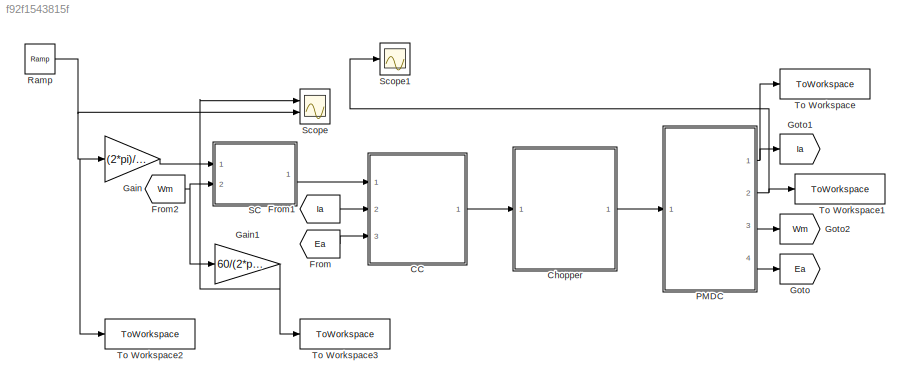
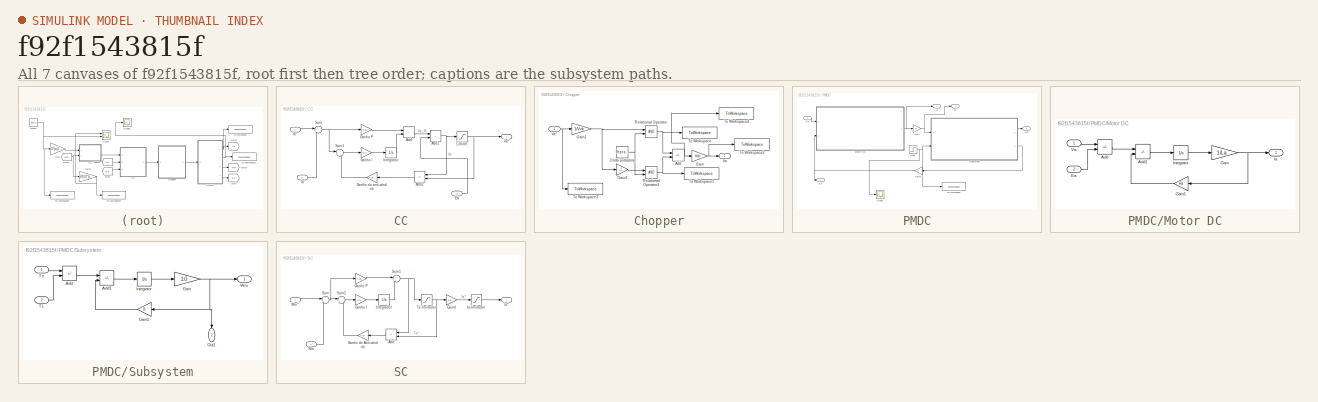
[diagram: thumbnail index - all 7 canvases of the model, root first then tree order]
MODEL slx_f92f1543815f
KIND model
CONFIG AbsTol = auto
CONFIG EnableMultiTasking = off
CONFIG FixedStep = 1e-8
CONFIG MaxStep = auto
CONFIG MinStep = auto
CONFIG RelTol = 1e-3
CONFIG SampleTimeConstraint = Unconstrained
CONFIG SolverName = ode4
CONFIG StartTime = 0
CONFIG StopTime = 0.2
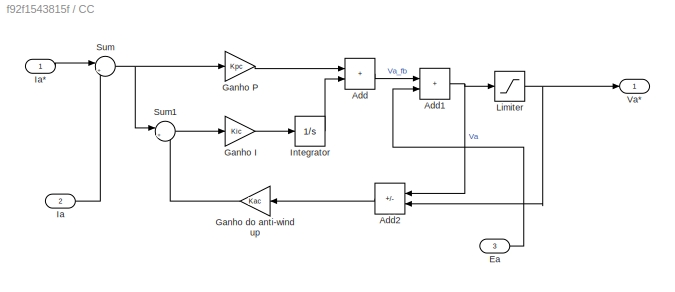
BLOCK [SubSystem] CC
  Ports = [3, 1]
  RequestExecContextInheritance = off
BLOCK [Sum] CC/Add
  IconShape = rectangular
  Ports = [2, 1]
BLOCK [Sum] CC/Add1
  IconShape = rectangular
  Ports = [2, 1]
BLOCK [Sum] CC/Add2
  IconShape = rectangular
  Inputs = +-
  NameLocation = top
  Ports = [2, 1]
BLOCK [Inport] CC/Ea
  Port = 3
BLOCK [Gain] CC/Ganho I
  Gain = Kic
BLOCK [Gain] CC/Ganho P
  Gain = Kpc
BLOCK [Gain] CC/Ganho do anti-wind up
  Gain = Kac
  NameLocation = top
BLOCK [Inport] CC/Ia
  Port = 2
BLOCK [Inport] CC/Ia*
BLOCK [Integrator] CC/Integrator
  Ports = [1, 1]
BLOCK [Saturate] CC/Limiter
  LowerLimit = -Va_rated
  UpperLimit = Va_rated
BLOCK [Sum] CC/Sum
  Inputs = |+-
  Ports = [2, 1]
BLOCK [Sum] CC/Sum1
  Inputs = |+-
  Ports = [2, 1]
BLOCK [Outport] CC/Va*
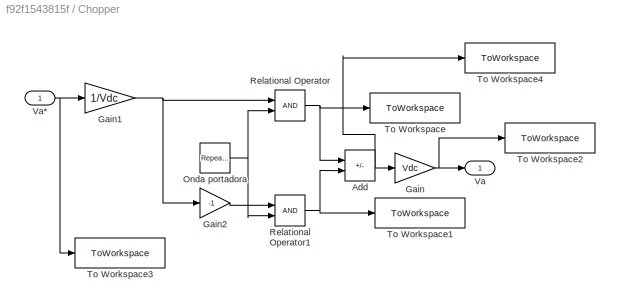
BLOCK [SubSystem] Chopper
  Ports = [1, 1]
  RequestExecContextInheritance = off
BLOCK [Sum] Chopper/Add
  IconShape = rectangular
  Inputs = +-
  Ports = [2, 1]
BLOCK [Gain] Chopper/Gain
  Gain = Vdc
BLOCK [Gain] Chopper/Gain1
  Gain = 1/Vdc
BLOCK [Gain] Chopper/Gain2
  Gain = -1
BLOCK [Reference] Chopper/Onda portadora  REF=simulink/Sources/Repeating
Sequence
  Ports = [0, 1]
  SourceBlock = simulink/Sources/Repeating\nSequence
  SourceProductBaseCode = SL
  SourceType = Repeating table
BLOCK [RelationalOperator] Chopper/Relational Operator
  InputSameDT = off
  OutDataTypeStr = boolean
  Ports = [2, 1]
  RndMeth = Simplest
BLOCK [RelationalOperator] Chopper/Relational Operator1
  InputSameDT = off
  OutDataTypeStr = boolean
  Ports = [2, 1]
  RndMeth = Simplest
BLOCK [ToWorkspace] Chopper/To Workspace
  FixptAsFi = on
  MaxDataPoints = inf
  Ports = [1]
  SampleTime = -1
  SaveFormat = Timeseries
  VariableName = Sa
BLOCK [ToWorkspace] Chopper/To Workspace1
  FixptAsFi = on
  MaxDataPoints = inf
  Ports = [1]
  SampleTime = -1
  SaveFormat = Timeseries
  VariableName = Sb
BLOCK [ToWorkspace] Chopper/To Workspace2
  FixptAsFi = on
  MaxDataPoints = inf
  Ports = [1]
  SampleTime = -1
  SaveFormat = Timeseries
  VariableName = Va
BLOCK [ToWorkspace] Chopper/To Workspace3
  FixptAsFi = on
  MaxDataPoints = inf
  Ports = [1]
  SampleTime = -1
  SaveFormat = Timeseries
  VariableName = Va_ref
BLOCK [ToWorkspace] Chopper/To Workspace4
  FixptAsFi = on
  MaxDataPoints = inf
  Ports = [1]
  SampleTime = -1
  SaveFormat = Timeseries
  VariableName = Sa_Sb
BLOCK [Outport] Chopper/Va
BLOCK [Inport] Chopper/Va*
BLOCK [From] From
  GotoTag = Ea
BLOCK [From] From1
  GotoTag = Ia
BLOCK [From] From2
  GotoTag = Wm
BLOCK [Gain] Gain
  Gain = (2*pi)/60
BLOCK [Gain] Gain1
  Gain = 60/(2*pi)
BLOCK [Goto] Goto
  GotoTag = Ea
BLOCK [Goto] Goto1
  GotoTag = Ia
BLOCK [Goto] Goto2
  GotoTag = Wm
BLOCK [SubSystem] PMDC
  Ports = [1, 4]
  RequestExecContextInheritance = off
BLOCK [Outport] PMDC/Ea
  Port = 4
BLOCK [Gain] PMDC/Gain
  Gain = Kt
BLOCK [Gain] PMDC/Gain2
  Gain = Kt
  NameLocation = top
BLOCK [Outport] PMDC/Ia
BLOCK [SubSystem] PMDC/Motor DC
  Ports = [2, 1]
  RequestExecContextInheritance = off
BLOCK [Sum] PMDC/Motor DC/Add
  IconShape = rectangular
  Inputs = +-
  Ports = [2, 1]
BLOCK [Sum] PMDC/Motor DC/Add1
  IconShape = rectangular
  Inputs = +-
  Ports = [2, 1]
BLOCK [Inport] PMDC/Motor DC/Ea
  Port = 2
BLOCK [Gain] PMDC/Motor DC/Gain
  Gain = 1/La
BLOCK [Gain] PMDC/Motor DC/Gain1
  Gain = Ra
  NameLocation = top
BLOCK [Outport] PMDC/Motor DC/Ia
BLOCK [Integrator] PMDC/Motor DC/Integrator
  Ports = [1, 1]
BLOCK [Inport] PMDC/Motor DC/Va
BLOCK [Scope] PMDC/Scope
  Floating = off
  NumInputPorts = 1
  Ports = [1]
  ScopeSpecificationString = Simulink.scopes.TimeScopeBlockCfg('CurrentConfiguration', extmgr.ConfigurationSet(extmgr.Configuration('Core','General UI',true),extmgr.Configuration('Core','Source UI',true),extmgr.Configuration('Sources','WiredSimulink',true,'DataLoggingVariableName','ScopeData1'),extmgr.Configuration('Visuals','Time Domain',true,'SerializedDisplays',{struct('MinYLimReal','-0.5','MaxYLimReal','4.5','YLabelReal',...<+1339ch>
BLOCK [Step] PMDC/Step
  After = 4
  SampleTime = 0
  Time = 0.01
BLOCK [SubSystem] PMDC/Subsystem
  Ports = [2, 2]
  RequestExecContextInheritance = off
BLOCK [Sum] PMDC/Subsystem/Add
  IconShape = rectangular
  Inputs = +-
  Ports = [2, 1]
BLOCK [Sum] PMDC/Subsystem/Add1
  IconShape = rectangular
  Inputs = +-
  Ports = [2, 1]
BLOCK [Gain] PMDC/Subsystem/Gain
  Gain = 1/J
BLOCK [Gain] PMDC/Subsystem/Gain1
  Gain = B
  NameLocation = top
BLOCK [Integrator] PMDC/Subsystem/Integrator
  Ports = [1, 1]
BLOCK [Outport] PMDC/Subsystem/Out1
  NameLocation = left
  Port = 2
BLOCK [Inport] PMDC/Subsystem/TL
  Port = 2
BLOCK [Inport] PMDC/Subsystem/Te
BLOCK [Outport] PMDC/Subsystem/Wm
BLOCK [Outport] PMDC/Te
  Port = 2
BLOCK [ToWorkspace] PMDC/To Workspace
  FixptAsFi = on
  MaxDataPoints = inf
  Ports = [1]
  SampleTime = -1
  SaveFormat = Timeseries
  VariableName = TL
BLOCK [Inport] PMDC/Va
BLOCK [Outport] PMDC/Wm
  Port = 3
BLOCK [Reference] Ramp  REF=simulink/Sources/Ramp
  Ports = [0, 1]
  SourceBlock = simulink/Sources/Ramp
  SourceProductBaseCode = SL
  SourceType = Ramp
BLOCK [SubSystem] SC
  Ports = [2, 1]
  RequestExecContextInheritance = off
BLOCK [Sum] SC/Add
  IconShape = rectangular
  Inputs = +-
  NameLocation = top
  Ports = [2, 1]
BLOCK [Gain] SC/Gain4
  Gain = 1/Kt
BLOCK [Gain] SC/Ganho I
  Gain = Kis
BLOCK [Gain] SC/Ganho P
  Gain = Kps
BLOCK [Gain] SC/Ganho de Anti-wind up
  Gain = Kas
  NameLocation = top
BLOCK [Outport] SC/Ia*
BLOCK [Saturate] SC/Ia-limitador
  LowerLimit = -Ia_rated
  UpperLimit = Ia_rated
BLOCK [Integrator] SC/Integrador
  Ports = [1, 1]
BLOCK [Sum] SC/Sum
  Inputs = |+-
  Ports = [2, 1]
BLOCK [Sum] SC/Sum1
  Inputs = |++
  Ports = [2, 1]
BLOCK [Sum] SC/Sum2
  Inputs = |+-
  Ports = [2, 1]
BLOCK [Saturate] SC/Te-limitador
  LowerLimit = -Te_rated
  UpperLimit = Te_rated
BLOCK [Inport] SC/Wm
  Port = 2
BLOCK [Inport] SC/Wm*
BLOCK [Scope] Scope
  Floating = off
  NumInputPorts = 2
  Ports = [2]
  ScopeSpecificationString = Simulink.scopes.TimeScopeBlockCfg('CurrentConfiguration', extmgr.ConfigurationSet(extmgr.Configuration('Core','General UI',true),extmgr.Configuration('Core','Source UI',true),extmgr.Configuration('Sources','WiredSimulink',true),extmgr.Configuration('Visuals','Time Domain',true,'SerializedDisplays',{struct('MinYLimReal','-973580.97332','MaxYLimReal','1778003.28349','YLabelReal','','MinYLimMag','   ...<+1403ch>
BLOCK [Scope] Scope1
  Floating = off
  NumInputPorts = 1
  Ports = [1]
  ScopeSpecificationString = Simulink.scopes.TimeScopeBlockCfg('CurrentConfiguration', extmgr.ConfigurationSet(extmgr.Configuration('Core','General UI',true),extmgr.Configuration('Core','Source UI',true),extmgr.Configuration('Sources','WiredSimulink',true,'DataLoggingVariableName','ScopeData1'),extmgr.Configuration('Visuals','Time Domain',true,'SerializedDisplays',{struct('MinYLimReal','-46340.31087','MaxYLimReal','46340.7116...<+1424ch>
BLOCK [ToWorkspace] To Workspace
  FixptAsFi = on
  MaxDataPoints = inf
  Ports = [1]
  SampleTime = -1
  SaveFormat = Timeseries
  VariableName = Ia
BLOCK [ToWorkspace] To Workspace1
  FixptAsFi = on
  MaxDataPoints = inf
  Ports = [1]
  SampleTime = -1
  SaveFormat = Timeseries
  VariableName = Te
BLOCK [ToWorkspace] To Workspace2
  FixptAsFi = on
  MaxDataPoints = inf
  Ports = [1]
  SampleTime = -1
  SaveFormat = Timeseries
  VariableName = W_rpm_ref
BLOCK [ToWorkspace] To Workspace3
  FixptAsFi = on
  MaxDataPoints = inf
  Ports = [1]
  SampleTime = -1
  SaveFormat = Timeseries
  VariableName = Wm_rpm
NET CC/Add1:1 -> CC/Add2:1, CC/Limiter:1
LINE CC/Add2:1 -> CC/Ganho do anti-wind up:1
LINE CC/Add:1 -> CC/Add1:1
LINE CC/Ea:1 -> CC/Add1:2
LINE CC/Ganho I:1 -> CC/Integrator:1
LINE CC/Ganho P:1 -> CC/Add:1
LINE CC/Ganho do anti-wind up:1 -> CC/Sum1:2
LINE CC/Ia*:1 -> CC/Sum:1
LINE CC/Ia:1 -> CC/Sum:2
LINE CC/Integrator:1 -> CC/Add:2
NET CC/Limiter:1 -> CC/Add2:2, CC/Va*:1
LINE CC/Sum1:1 -> CC/Ganho I:1
NET CC/Sum:1 -> CC/Ganho P:1, CC/Sum1:1
LINE CC:1 -> Chopper:1
NET Chopper/Add:1 -> Chopper/Gain:1, Chopper/To Workspace4:1
NET Chopper/Gain1:1 -> Chopper/Gain2:1, Chopper/Relational Operator:1
LINE Chopper/Gain2:1 -> Chopper/Relational Operator1:1
NET Chopper/Gain:1 -> Chopper/To Workspace2:1, Chopper/Va:1
NET Chopper/Onda portadora:1 -> Chopper/Relational Operator1:2, Chopper/Relational Operator:2
NET Chopper/Relational Operator1:1 -> Chopper/Add:2, Chopper/To Workspace1:1
NET Chopper/Relational Operator:1 -> Chopper/Add:1, Chopper/To Workspace:1
NET Chopper/Va*:1 -> Chopper/Gain1:1, Chopper/To Workspace3:1
LINE Chopper:1 -> PMDC:1
LINE From1:1 -> CC:2
NET From2:1 -> Gain1:1, SC:2
LINE From:1 -> CC:3
NET Gain1:1 -> Scope:1, To Workspace3:1
LINE Gain:1 -> SC:1
NET PMDC/Gain2:1 -> PMDC/Ea:1, PMDC/Motor DC:2
NET PMDC/Gain:1 -> PMDC/Subsystem:1, PMDC/Te:1
LINE PMDC/Motor DC/Add1:1 -> PMDC/Motor DC/Integrator:1
LINE PMDC/Motor DC/Add:1 -> PMDC/Motor DC/Add1:1
LINE PMDC/Motor DC/Ea:1 -> PMDC/Motor DC/Add:2
LINE PMDC/Motor DC/Gain1:1 -> PMDC/Motor DC/Add1:2
NET PMDC/Motor DC/Gain:1 -> PMDC/Motor DC/Gain1:1, PMDC/Motor DC/Ia:1
LINE PMDC/Motor DC/Integrator:1 -> PMDC/Motor DC/Gain:1
LINE PMDC/Motor DC/Va:1 -> PMDC/Motor DC/Add:1
NET PMDC/Motor DC:1 -> PMDC/Gain:1, PMDC/Ia:1
NET PMDC/Step:1 -> PMDC/Scope:1, PMDC/Subsystem:2, PMDC/To Workspace:1
LINE PMDC/Subsystem/Add1:1 -> PMDC/Subsystem/Integrator:1
LINE PMDC/Subsystem/Add:1 -> PMDC/Subsystem/Add1:1
LINE PMDC/Subsystem/Gain1:1 -> PMDC/Subsystem/Add1:2
NET PMDC/Subsystem/Gain:1 -> PMDC/Subsystem/Gain1:1, PMDC/Subsystem/Out1:1, PMDC/Subsystem/Wm:1
LINE PMDC/Subsystem/Integrator:1 -> PMDC/Subsystem/Gain:1
LINE PMDC/Subsystem/TL:1 -> PMDC/Subsystem/Add:2
LINE PMDC/Subsystem/Te:1 -> PMDC/Subsystem/Add:1
LINE PMDC/Subsystem:1 -> PMDC/Wm:1
LINE PMDC/Subsystem:2 -> PMDC/Gain2:1
LINE PMDC/Va:1 -> PMDC/Motor DC:1
NET PMDC:1 -> Goto1:1, To Workspace:1
NET PMDC:2 -> Scope1:1, To Workspace1:1
LINE PMDC:3 -> Goto2:1
LINE PMDC:4 -> Goto:1
NET Ramp:1 -> Gain:1, Scope:2, To Workspace2:1
LINE SC/Add:1 -> SC/Ganho de Anti-wind up:1
LINE SC/Gain4:1 -> SC/Ia-limitador:1
LINE SC/Ganho I:1 -> SC/Integrador:1
LINE SC/Ganho P:1 -> SC/Sum1:1
LINE SC/Ganho de Anti-wind up:1 -> SC/Sum2:2
LINE SC/Ia-limitador:1 -> SC/Ia*:1
LINE SC/Integrador:1 -> SC/Sum1:2
NET SC/Sum1:1 -> SC/Add:1, SC/Te-limitador:1
LINE SC/Sum2:1 -> SC/Ganho I:1
NET SC/Sum:1 -> SC/Ganho P:1, SC/Sum2:1
NET SC/Te-limitador:1 -> SC/Add:2, SC/Gain4:1
LINE SC/Wm*:1 -> SC/Sum:1
LINE SC/Wm:1 -> SC/Sum:2
LINE SC:1 -> CC:1
note: NET lines group one-source signal fan-out (src -> all destinations, sorted); 1:1 wires keep LINE
